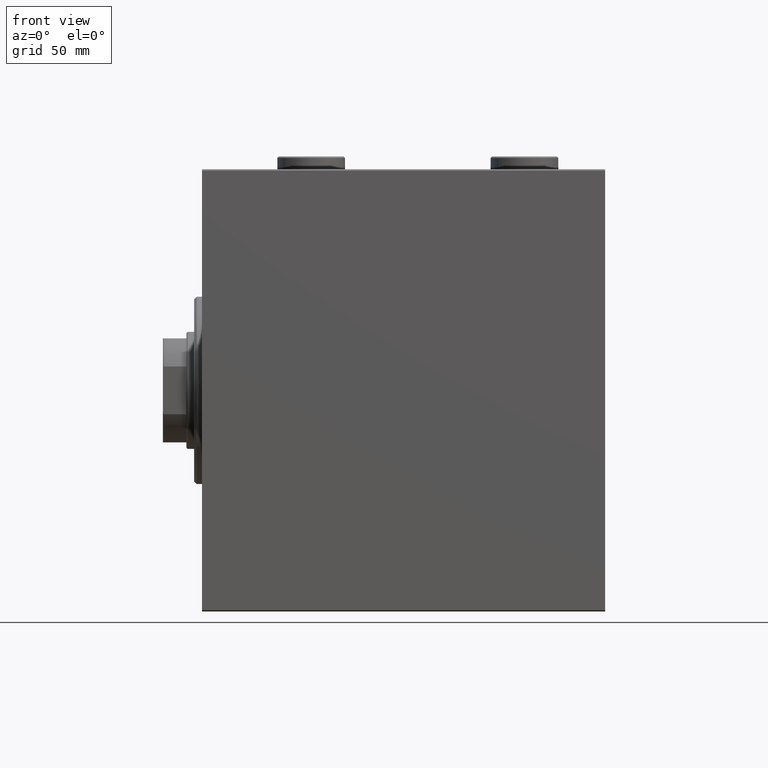
[diagram: clean part render]
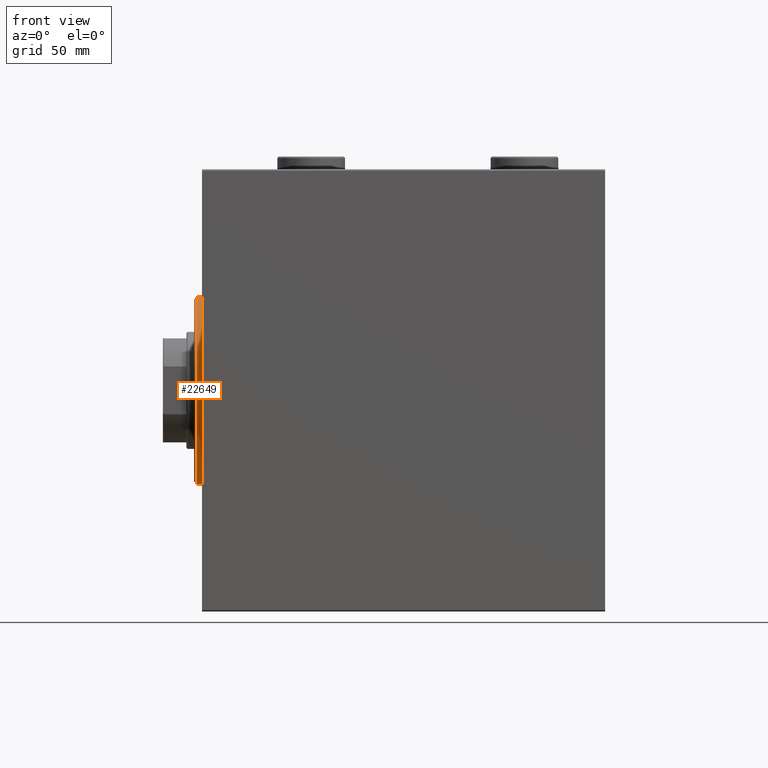
[diagram: same view with one face highlighted and labeled with its STEP entity id]
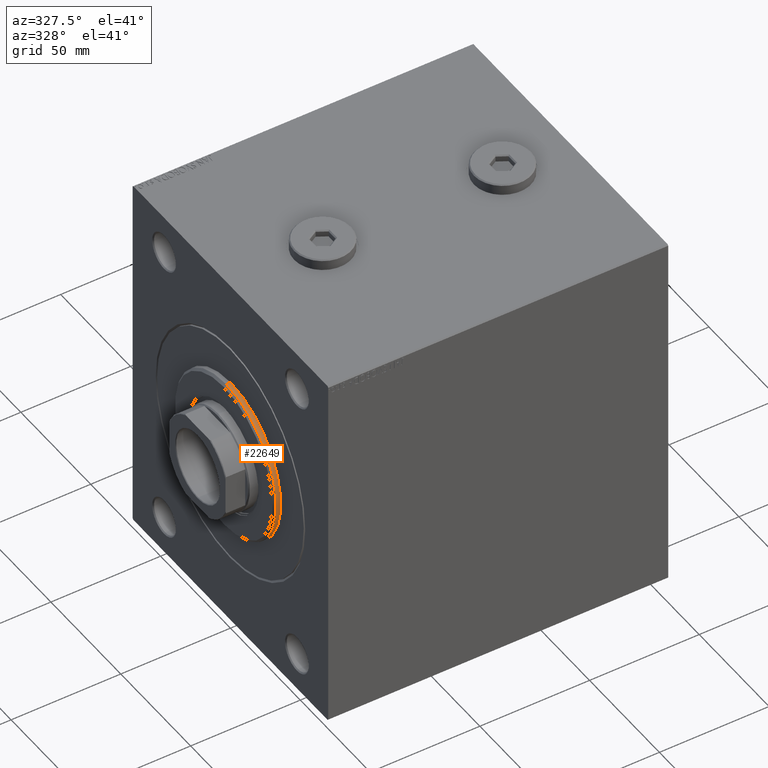
[diagram: same view with one face highlighted and labeled with its STEP entity id]
A machine part, front view. The second image highlights one B-rep face of the part: STEP entity #22649.
A second angle (auxiliary view) of the same face is appended — the face is thin or edge-on in the first view.
In plain terms, the highlighted cylindrical surface (partial cylindrical patch) has radius 36 mm, axis along (1, -0, -0).
Its self-contained STEP definition (entity closure, byte-faithful):
#6 = EDGE_CURVE ( 'NONE', #36632, #7223, #18913, .T. ) ;
#414 = CARTESIAN_POINT ( 'NONE',  ( 0.000000000000000000, 0.000000000000000000, 36.00000000000000000 ) ) ;
#421 = DIRECTION ( 'NONE',  ( -1.000000000000000000, 0.000000000000000000, 0.000000000000000000 ) ) ;
#1374 = CIRCLE ( 'NONE', #28687, 36.00000000000000000 ) ;
#2172 = EDGE_CURVE ( 'NONE', #31268, #36632, #1374, .T. ) ;
#3510 = CARTESIAN_POINT ( 'NONE',  ( 3.000000000000000000, 0.000000000000000000, 36.00000000000000000 ) ) ;
#4474 = EDGE_LOOP ( 'NONE', ( #36546, #8506, #23301, #14864 ) ) ;
#6377 = CARTESIAN_POINT ( 'NONE',  ( 3.000000000000000000, 4.408728476930470856E-15, -36.00000000000000000 ) ) ;
#7223 = VERTEX_POINT ( 'NONE', #9435 ) ;
#7414 = CYLINDRICAL_SURFACE ( 'NONE', #24728, 36.00000000000000000 ) ;
#8506 = ORIENTED_EDGE ( 'NONE', *, *, #6, .T. ) ;
#9410 = VECTOR ( 'NONE', #22614, 1000.000000000000000 ) ;
#9435 = CARTESIAN_POINT ( 'NONE',  ( 0.000000000000000000, 4.408728476930470856E-15, -36.00000000000000000 ) ) ;
#9637 = CIRCLE ( 'NONE', #39931, 36.00000000000000000 ) ;
#12806 = VECTOR ( 'NONE', #17580, 1000.000000000000000 ) ;
#14864 = ORIENTED_EDGE ( 'NONE', *, *, #22662, .F. ) ;
#15175 = CARTESIAN_POINT ( 'NONE',  ( 2.000000000000019984, 0.000000000000000000, 0.000000000000000000 ) ) ;
#17580 = DIRECTION ( 'NONE',  ( -1.000000000000000000, -0.000000000000000000, -0.000000000000000000 ) ) ;
#18913 = LINE ( 'NONE', #6377, #9410 ) ;
#18954 = DIRECTION ( 'NONE',  ( 1.000000000000000000, -0.000000000000000000, 0.000000000000000000 ) ) ;
#19420 = CARTESIAN_POINT ( 'NONE',  ( 0.000000000000000000, 0.000000000000000000, 0.000000000000000000 ) ) ;
#22614 = DIRECTION ( 'NONE',  ( -1.000000000000000000, -0.000000000000000000, -0.000000000000000000 ) ) ;
#22649 = ADVANCED_FACE ( 'NONE', ( #25425 ), #7414, .T. ) ;
#22662 = EDGE_CURVE ( 'NONE', #31268, #31305, #32355, .T. ) ;
#23301 = ORIENTED_EDGE ( 'NONE', *, *, #39930, .T. ) ;
#24728 = AXIS2_PLACEMENT_3D ( 'NONE', #31468, #24765, #39307 ) ;
#24765 = DIRECTION ( 'NONE',  ( -1.000000000000000000, -0.000000000000000000, -0.000000000000000000 ) ) ;
#25086 = CARTESIAN_POINT ( 'NONE',  ( 2.000000000000019984, 4.408728476930470856E-15, -36.00000000000000000 ) ) ;
#25425 = FACE_OUTER_BOUND ( 'NONE', #4474, .T. ) ;
#28146 = CARTESIAN_POINT ( 'NONE',  ( 2.000000000000019984, 0.000000000000000000, 36.00000000000000000 ) ) ;
#28687 = AXIS2_PLACEMENT_3D ( 'NONE', #15175, #421, #35988 ) ;
#31268 = VERTEX_POINT ( 'NONE', #28146 ) ;
#31305 = VERTEX_POINT ( 'NONE', #414 ) ;
#31468 = CARTESIAN_POINT ( 'NONE',  ( 3.000000000000000000, 0.000000000000000000, 0.000000000000000000 ) ) ;
#32355 = LINE ( 'NONE', #3510, #12806 ) ;
#33521 = DIRECTION ( 'NONE',  ( 0.000000000000000000, 0.000000000000000000, -1.000000000000000000 ) ) ;
#35988 = DIRECTION ( 'NONE',  ( 0.000000000000000000, 0.000000000000000000, -1.000000000000000000 ) ) ;
#36546 = ORIENTED_EDGE ( 'NONE', *, *, #2172, .T. ) ;
#36632 = VERTEX_POINT ( 'NONE', #25086 ) ;
#39307 = DIRECTION ( 'NONE',  ( 0.000000000000000000, 0.000000000000000000, 1.000000000000000000 ) ) ;
#39930 = EDGE_CURVE ( 'NONE', #7223, #31305, #9637, .T. ) ;
#39931 = AXIS2_PLACEMENT_3D ( 'NONE', #19420, #18954, #33521 ) ;